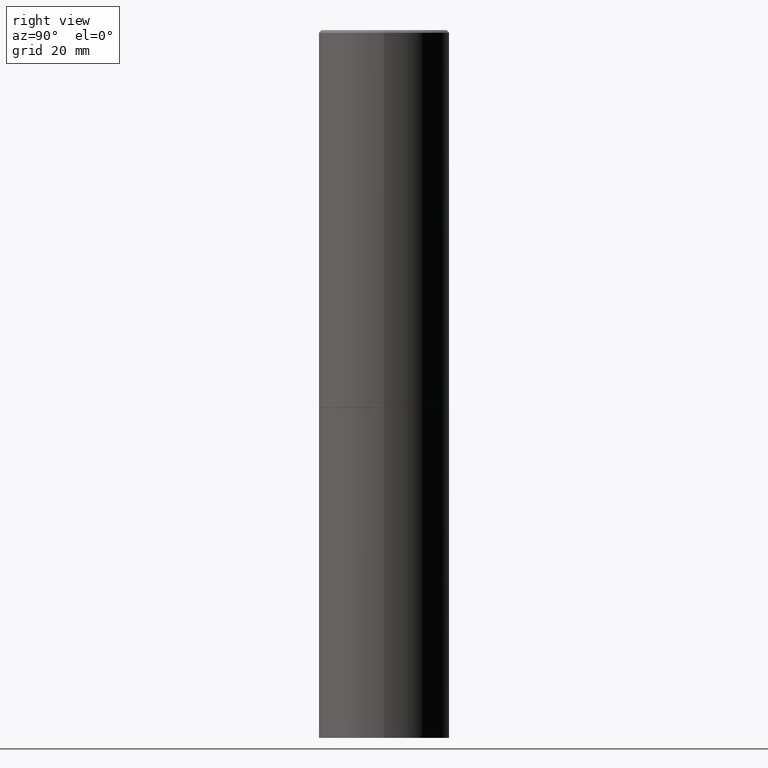
[diagram: clean part render]
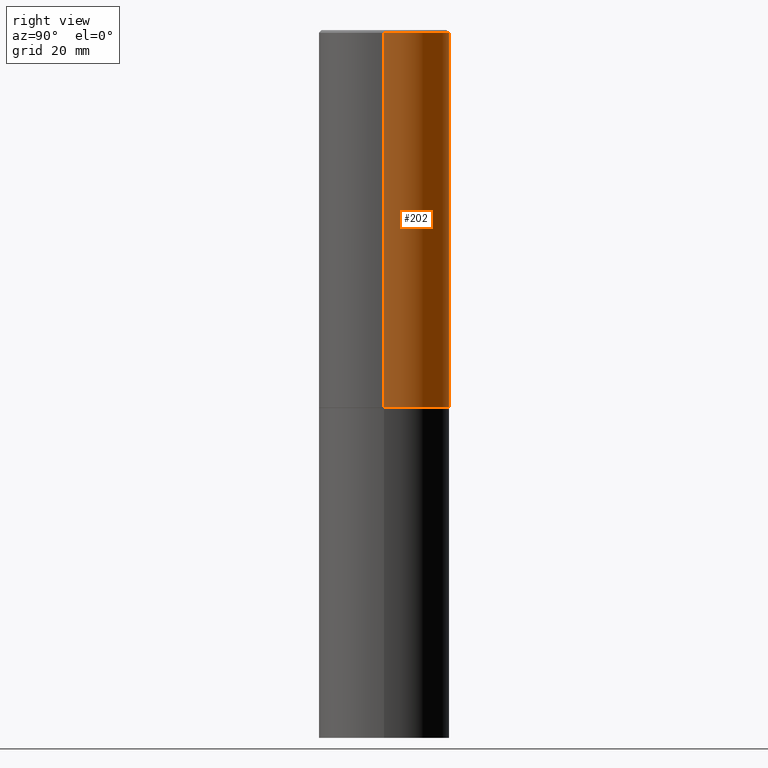
[diagram: same view with one face highlighted and labeled with its STEP entity id]
A machine part, right view. The second image highlights one B-rep face of the part: STEP entity #202.
In plain terms, the highlighted cylindrical surface (partial cylindrical patch) has radius 12.5006 mm, axis along (-0, 0, 1).
Its self-contained STEP definition (entity closure, byte-faithful):
#11 = DIRECTION ( 'NONE',  ( 1.000000000000000000, -6.982962677686265922E-15, 0.000000000000000000 ) ) ;
#35 = EDGE_CURVE ( 'NONE', #253, #324, #167, .T. ) ;
#43 = ORIENTED_EDGE ( 'NONE', *, *, #360, .T. ) ;
#51 = FACE_OUTER_BOUND ( 'NONE', #154, .T. ) ;
#52 = EDGE_CURVE ( 'NONE', #236, #253, #229, .T. ) ;
#68 = DIRECTION ( 'NONE',  ( -2.445468806185136877E-29, 3.491481338843145188E-15, 1.000000000000000000 ) ) ;
#71 = VERTEX_POINT ( 'NONE', #203 ) ;
#78 = DIRECTION ( 'NONE',  ( -2.445468806185136877E-29, 3.491481338843145188E-15, 1.000000000000000000 ) ) ;
#83 = ORIENTED_EDGE ( 'NONE', *, *, #52, .F. ) ;
#102 = AXIS2_PLACEMENT_3D ( 'NONE', #305, #342, #11 ) ;
#120 = AXIS2_PLACEMENT_3D ( 'NONE', #309, #143, #259 ) ;
#143 = DIRECTION ( 'NONE',  ( -2.445468806185136597E-29, 3.491481338843145583E-15, 1.000000000000000000 ) ) ;
#149 = ORIENTED_EDGE ( 'NONE', *, *, #306, .T. ) ;
#154 = EDGE_LOOP ( 'NONE', ( #149, #43, #361, #83 ) ) ;
#163 = CARTESIAN_POINT ( 'NONE',  ( -0.4921499999999996988, 3.366835455046430506E-15, -0.02000000000000009409 ) ) ;
#167 = CIRCLE ( 'NONE', #120, 0.4921499999999996988 ) ;
#179 = CIRCLE ( 'NONE', #102, 0.4921499999999999764 ) ;
#201 = CARTESIAN_POINT ( 'NONE',  ( 0.4921499999999998098, -3.436665081823294593E-15, 2.399810400207968762E-29 ) ) ;
#202 = ADVANCED_FACE ( 'NONE', ( #51 ), #334, .T. ) ;
#203 = CARTESIAN_POINT ( 'NONE',  ( -0.4921499999999999764, -1.484884074285010433E-15, -2.833700000000000774 ) ) ;
#211 = AXIS2_PLACEMENT_3D ( 'NONE', #280, #217, #297 ) ;
#212 = CARTESIAN_POINT ( 'NONE',  ( 0.4921499999999999764, -1.333047575170312032E-14, -2.833700000000000774 ) ) ;
#214 = VECTOR ( 'NONE', #68, 39.37007874015748143 ) ;
#217 = DIRECTION ( 'NONE',  ( -2.445468806185136597E-29, 3.491481338843145583E-15, 1.000000000000000000 ) ) ;
#229 = LINE ( 'NONE', #201, #214 ) ;
#236 = VERTEX_POINT ( 'NONE', #212 ) ;
#244 = LINE ( 'NONE', #249, #284 ) ;
#249 = CARTESIAN_POINT ( 'NONE',  ( -0.4921499999999998098, 3.496936074043331714E-15, -2.420853904668950949E-29 ) ) ;
#253 = VERTEX_POINT ( 'NONE', #286 ) ;
#259 = DIRECTION ( 'NONE',  ( 1.000000000000000000, -6.982962677686265922E-15, 0.000000000000000000 ) ) ;
#280 = CARTESIAN_POINT ( 'NONE',  ( 0.000000000000000000, 0.000000000000000000, 0.000000000000000000 ) ) ;
#284 = VECTOR ( 'NONE', #78, 39.37007874015748143 ) ;
#286 = CARTESIAN_POINT ( 'NONE',  ( 0.4921499999999996988, -3.446223716380120377E-15, -0.02000000000000009409 ) ) ;
#297 = DIRECTION ( 'NONE',  ( 1.000000000000000000, -6.982962677686265922E-15, 4.876176775795935793E-29 ) ) ;
#305 = CARTESIAN_POINT ( 'NONE',  ( 6.929724956086824062E-29, -9.893810669879824545E-15, -2.833700000000000774 ) ) ;
#306 = EDGE_CURVE ( 'NONE', #236, #71, #179, .T. ) ;
#309 = CARTESIAN_POINT ( 'NONE',  ( 4.890937612370296805E-31, -6.982962677686323656E-17, -0.02000000000000009409 ) ) ;
#324 = VERTEX_POINT ( 'NONE', #163 ) ;
#334 = CYLINDRICAL_SURFACE ( 'NONE', #211, 0.4921499999999998098 ) ;
#342 = DIRECTION ( 'NONE',  ( -2.445468806185136597E-29, 3.491481338843145583E-15, 1.000000000000000000 ) ) ;
#360 = EDGE_CURVE ( 'NONE', #71, #324, #244, .T. ) ;
#361 = ORIENTED_EDGE ( 'NONE', *, *, #35, .F. ) ;